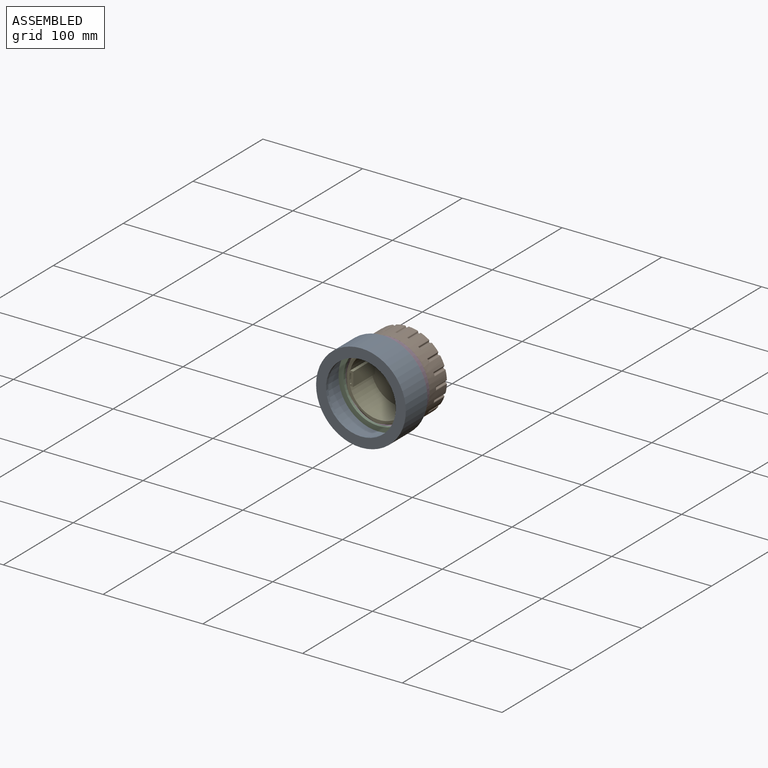
[diagram: assembled view]
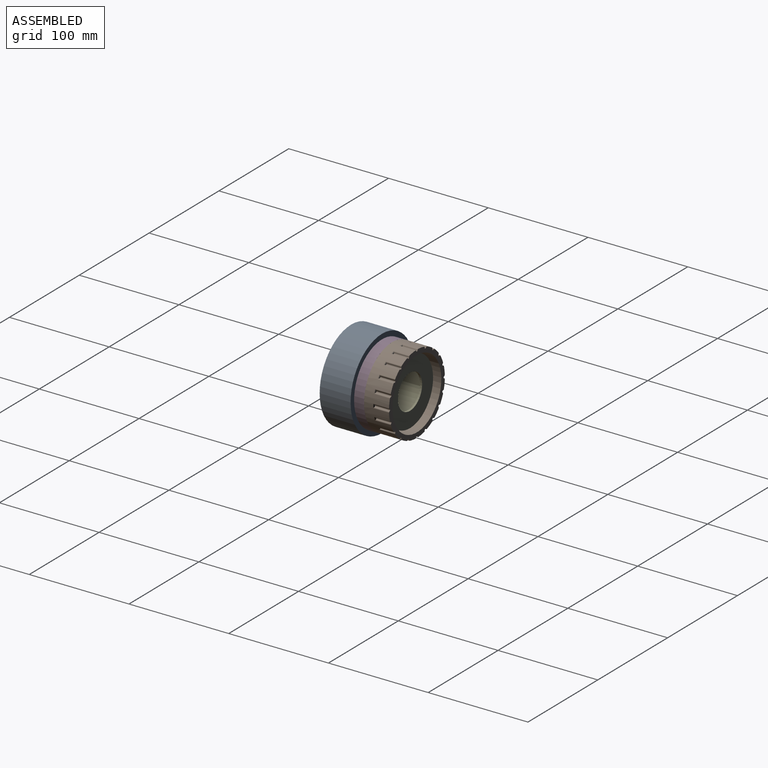
[diagram: assembled view, second angle]
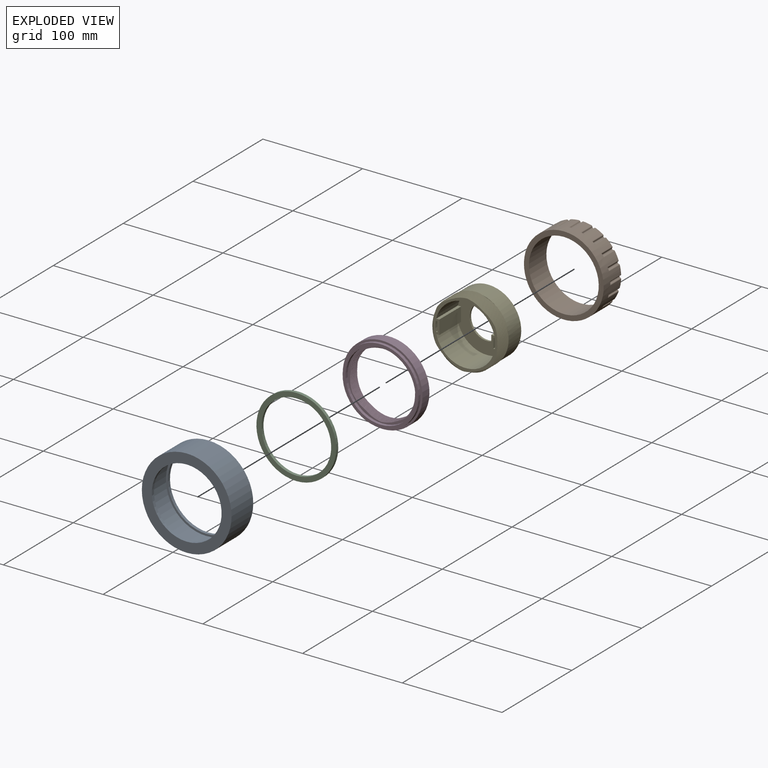
[diagram: exploded view]
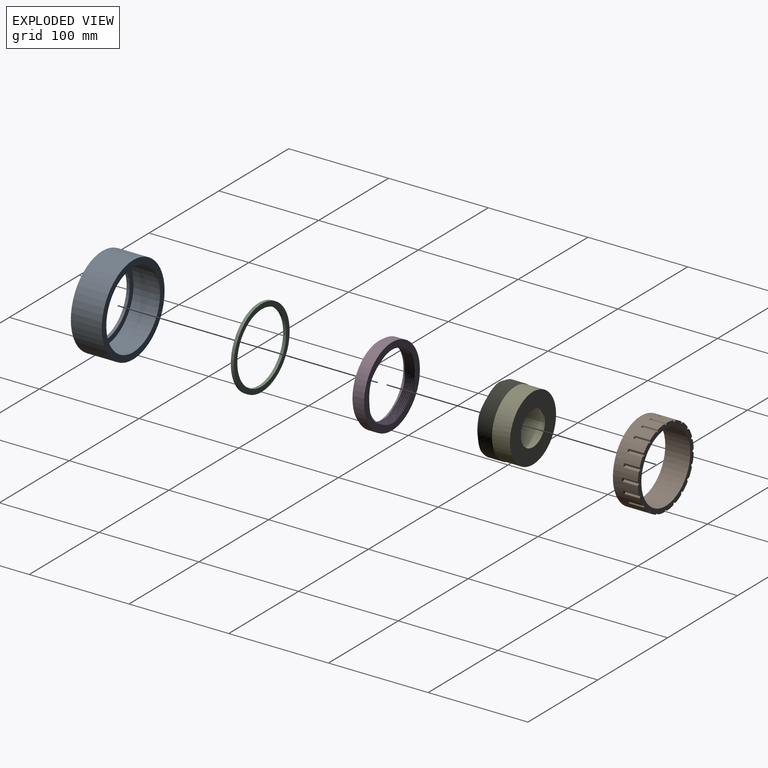
[diagram: exploded view, second angle]
ASSEMBLY  parts=5 mates=4
PART A: 8 faces, bbox 90x31x90 mm
  f0: plane 81x81mm, normal (0,-1,0), area 496.4mm2, adj f1,f4
  f1: cylinder r=38.5mm len=77mm, axis (0,1,0), area 725.7mm2, adj f0,f3
  f2: cylinder r=45mm len=90mm, axis (0,1,0), area 8765mm2, adj f3,f7
  f3: plane 90x90mm, normal (0,1,0), area 1705.1mm2, adj f1,f2
  f4: cylinder r=40.5mm len=81mm, axis (0,1,0), area 6361.7mm2, adj f0,f5
  f5: plane 81x81mm, normal (0,1,0), area 1304.5mm2, adj f4,f6
  f6: cylinder r=35mm len=70mm, axis (0,1,0), area 659.7mm2, adj f5,f7
  f7: plane 90x90mm, normal (0,-1,0), area 2513.3mm2, adj f2,f6
PART B: 144 faces, bbox 80.1x25x80.1 mm
  f0: cylinder r=1mm len=15mm, axis (0,1,0), area 33.7mm2, adj f4,f5,f6,f135
  f1: cylinder r=1mm len=16mm, axis (0,1,0), area 18.2mm2, adj f3,f4,f134,f135
  f2: cylinder r=1mm len=16mm, axis (0,1,0), area 18.2mm2, adj f3,f5,f134,f135
  f3: torus R=39mm, axis (0,-1,0), area 4.5mm2, adj f1,f2,f4,f5,f6,f134
  f4: plane 15.09x0.4mm, normal (-0.72,0,0.69), area 8.2mm2, adj f0,f1,f3,f6,f135
  f5: plane 15.09x0.55mm, normal (0.99,0,0.13), area 8.2mm2, adj f0,f2,f3,f6,f135
  f6: plane 1.81x0.98mm, normal (0,-1,0), area 0.9mm2, adj f0,f3,f4,f5
  f7: cylinder r=1mm len=15mm, axis (0,1,0), area 33.7mm2, adj f11,f12,f13,f135
  f8: cylinder r=1mm len=16mm, axis (0,1,0), area 18.2mm2, adj f10,f11,f134,f135
  f9: cylinder r=1mm len=16mm, axis (0,1,0), area 18.2mm2, adj f10,f12,f134,f135
  f10: torus R=39mm, axis (0,-1,0), area 4.5mm2, adj f8,f9,f11,f12,f13,f134
  f11: plane 15.09x0.48mm, normal (-0.48,0,0.88), area 8.2mm2, adj f7,f8,f10,f13,f135
  f12: plane 15.09x0.54mm, normal (0.98,0,-0.18), area 8.2mm2, adj f7,f9,f10,f13,f135
  f13: plane 1.58x1.29mm, normal (0,-1,0), area 0.9mm2, adj f7,f10,f11,f12
  f14: cylinder r=1mm len=15mm, axis (0,1,0), area 33.7mm2, adj f18,f19,f20,f135
  f15: cylinder r=1mm len=16mm, axis (0,1,0), area 18.2mm2, adj f17,f18,f134,f135
  f16: cylinder r=1mm len=16mm, axis (0,1,0), area 18.2mm2, adj f17,f19,f134,f135
  f17: torus R=39mm, axis (0,-1,0), area 4.5mm2, adj f15,f16,f18,f19,f20,f134
  f18: plane 15.09x0.54mm, normal (-0.18,0,0.98), area 8.2mm2, adj f14,f15,f17,f20,f135
  f19: plane 15.09x0.48mm, normal (0.88,0,-0.48), area 8.2mm2, adj f14,f16,f17,f20,f135
  f20: plane 1.58x1.29mm, normal (0,-1,0), area 0.9mm2, adj f14,f17,f18,f19
  f21: cylinder r=1mm len=15mm, axis (0,1,0), area 33.7mm2, adj f25,f26,f27,f135
  f22: cylinder r=1mm len=16mm, axis (0,1,0), area 18.2mm2, adj f24,f25,f134,f135
  f23: cylinder r=1mm len=16mm, axis (0,1,0), area 18.2mm2, adj f24,f26,f134,f135
  f24: torus R=39mm, axis (0,-1,0), area 4.5mm2, adj f22,f23,f25,f26,f27,f134
  f25: plane 15.09x0.55mm, normal (0.13,0,0.99), area 8.2mm2, adj f21,f22,f24,f27,f135
  f26: plane 15.09x0.4mm, normal (0.69,0,-0.72), area 8.2mm2, adj f21,f23,f24,f27,f135
  f27: plane 1.81x0.98mm, normal (0,-1,0), area 0.9mm2, adj f21,f24,f25,f26
  f28: cylinder r=1mm len=15mm, axis (0,1,0), area 33.7mm2, adj f32,f33,f34,f135
  f29: cylinder r=1mm len=16mm, axis (0,1,0), area 18.2mm2, adj f31,f32,f134,f135
  f30: cylinder r=1mm len=16mm, axis (0,1,0), area 18.2mm2, adj f31,f33,f134,f135
  f31: torus R=39mm, axis (0,-1,0), area 4.5mm2, adj f29,f30,f32,f33,f34,f134
  f32: plane 15.09x0.5mm, normal (0.43,0,0.9), area 8.2mm2, adj f28,f29,f31,f34,f135
  f33: plane 15.09x0.5mm, normal (0.43,0,-0.9), area 8.2mm2, adj f28,f30,f31,f34,f135
  f34: plane 1.9x0.68mm, normal (0,-1,0), area 0.9mm2, adj f28,f31,f32,f33
  f35: cylinder r=1mm len=15mm, axis (0,1,0), area 33.7mm2, adj f39,f40,f41,f135
  f36: cylinder r=1mm len=16mm, axis (0,1,0), area 18.2mm2, adj f38,f39,f134,f135
  f37: cylinder r=1mm len=16mm, axis (0,1,0), area 18.2mm2, adj f38,f40,f134,f135
  f38: torus R=39mm, axis (0,-1,0), area 4.5mm2, adj f36,f37,f39,f40,f41,f134
  f39: plane 15.09x0.4mm, normal (0.69,0,0.72), area 8.2mm2, adj f35,f36,f38,f41,f135
  f40: plane 15.09x0.55mm, normal (0.13,0,-0.99), area 8.2mm2, adj f35,f37,f38,f41,f135
  f41: plane 1.81x0.98mm, normal (0,-1,0), area 0.9mm2, adj f35,f38,f39,f40
  f42: cylinder r=1mm len=15mm, axis (0,1,0), area 33.7mm2, adj f46,f47,f48,f135
  f43: cylinder r=1mm len=16mm, axis (0,1,0), area 18.2mm2, adj f45,f46,f134,f135
  f44: cylinder r=1mm len=16mm, axis (0,1,0), area 18.2mm2, adj f45,f47,f134,f135
  f45: torus R=39mm, axis (0,-1,0), area 4.5mm2, adj f43,f44,f46,f47,f48,f134
  f46: plane 15.09x0.48mm, normal (0.88,0,0.48), area 8.2mm2, adj f42,f43,f45,f48,f135
  f47: plane 15.09x0.54mm, normal (-0.18,0,-0.98), area 8.2mm2, adj f42,f44,f45,f48,f135
  f48: plane 1.58x1.29mm, normal (0,-1,0), area 0.9mm2, adj f42,f45,f46,f47
  f49: cylinder r=1mm len=15mm, axis (0,1,0), area 33.7mm2, adj f53,f54,f55,f135
  f50: cylinder r=1mm len=16mm, axis (0,1,0), area 18.2mm2, adj f52,f53,f134,f135
  f51: cylinder r=1mm len=16mm, axis (0,1,0), area 18.2mm2, adj f52,f54,f134,f135
  f52: torus R=39mm, axis (0,-1,0), area 4.5mm2, adj f50,f51,f53,f54,f55,f134
  f53: plane 15.09x0.54mm, normal (0.98,0,0.18), area 8.2mm2, adj f49,f50,f52,f55,f135
  f54: plane 15.09x0.48mm, normal (-0.48,0,-0.88), area 8.2mm2, adj f49,f51,f52,f55,f135
  f55: plane 1.58x1.29mm, normal (0,-1,0), area 0.9mm2, adj f49,f52,f53,f54
  f56: cylinder r=1mm len=15mm, axis (0,1,0), area 33.7mm2, adj f60,f61,f62,f135
  f57: cylinder r=1mm len=16mm, axis (0,1,0), area 18.2mm2, adj f59,f60,f134,f135
  f58: cylinder r=1mm len=16mm, axis (0,1,0), area 18.2mm2, adj f59,f61,f134,f135
  f59: torus R=39mm, axis (0,-1,0), area 4.5mm2, adj f57,f58,f60,f61,f62,f134
  f60: plane 15.09x0.55mm, normal (0.99,0,-0.13), area 8.2mm2, adj f56,f57,f59,f62,f135
  f61: plane 15.09x0.4mm, normal (-0.72,0,-0.69), area 8.2mm2, adj f56,f58,f59,f62,f135
  f62: plane 1.81x0.98mm, normal (0,-1,0), area 0.9mm2, adj f56,f59,f60,f61
  f63: cylinder r=1mm len=15mm, axis (0,1,0), area 33.7mm2, adj f67,f68,f69,f135
  f64: cylinder r=1mm len=16mm, axis (0,1,0), area 18.2mm2, adj f66,f67,f134,f135
  f65: cylinder r=1mm len=16mm, axis (0,1,0), area 18.2mm2, adj f66,f68,f134,f135
  f66: torus R=39mm, axis (0,-1,0), area 4.5mm2, adj f64,f65,f67,f68,f69,f134
  f67: plane 15.09x0.5mm, normal (0.9,0,-0.43), area 8.2mm2, adj f63,f64,f66,f69,f135
  f68: plane 15.09x0.5mm, normal (-0.9,0,-0.43), area 8.2mm2, adj f63,f65,f66,f69,f135
  f69: plane 1.9x0.68mm, normal (0,-1,0), area 0.9mm2, adj f63,f66,f67,f68
  f70: cylinder r=1mm len=15mm, axis (0,1,0), area 33.7mm2, adj f74,f75,f76,f135
  f71: cylinder r=1mm len=16mm, axis (0,1,0), area 18.2mm2, adj f73,f74,f134,f135
  f72: cylinder r=1mm len=16mm, axis (0,1,0), area 18.2mm2, adj f73,f75,f134,f135
  f73: torus R=39mm, axis (0,-1,0), area 4.5mm2, adj f71,f72,f74,f75,f76,f134
  f74: plane 15.09x0.4mm, normal (0.72,0,-0.69), area 8.2mm2, adj f70,f71,f73,f76,f135
  f75: plane 15.09x0.55mm, normal (-0.99,0,-0.13), area 8.2mm2, adj f70,f72,f73,f76,f135
  f76: plane 1.81x0.98mm, normal (0,-1,0), area 0.9mm2, adj f70,f73,f74,f75
  f77: cylinder r=1mm len=15mm, axis (0,1,0), area 33.7mm2, adj f81,f82,f83,f135
  f78: cylinder r=1mm len=16mm, axis (0,1,0), area 18.2mm2, adj f80,f81,f134,f135
  f79: cylinder r=1mm len=16mm, axis (0,1,0), area 18.2mm2, adj f80,f82,f134,f135
  f80: torus R=39mm, axis (0,-1,0), area 4.5mm2, adj f78,f79,f81,f82,f83,f134
  f81: plane 15.09x0.48mm, normal (0.48,0,-0.88), area 8.2mm2, adj f77,f78,f80,f83,f135
  f82: plane 15.09x0.54mm, normal (-0.98,0,0.18), area 8.2mm2, adj f77,f79,f80,f83,f135
  f83: plane 1.58x1.29mm, normal (0,-1,0), area 0.9mm2, adj f77,f80,f81,f82
  f84: cylinder r=1mm len=15mm, axis (0,1,0), area 33.7mm2, adj f88,f89,f90,f135
  f85: cylinder r=1mm len=16mm, axis (0,1,0), area 18.2mm2, adj f87,f88,f134,f135
  f86: cylinder r=1mm len=16mm, axis (0,1,0), area 18.2mm2, adj f87,f89,f134,f135
  f87: torus R=39mm, axis (0,-1,0), area 4.5mm2, adj f85,f86,f88,f89,f90,f134
  f88: plane 15.09x0.54mm, normal (0.18,0,-0.98), area 8.2mm2, adj f84,f85,f87,f90,f135
  f89: plane 15.09x0.48mm, normal (-0.88,0,0.48), area 8.2mm2, adj f84,f86,f87,f90,f135
  f90: plane 1.58x1.29mm, normal (0,-1,0), area 0.9mm2, adj f84,f87,f88,f89
  f91: cylinder r=1mm len=15mm, axis (0,1,0), area 33.7mm2, adj f95,f96,f97,f135
  f92: cylinder r=1mm len=16mm, axis (0,1,0), area 18.2mm2, adj f94,f95,f134,f135
  f93: cylinder r=1mm len=16mm, axis (0,1,0), area 18.2mm2, adj f94,f96,f134,f135
  f94: torus R=39mm, axis (0,-1,0), area 4.5mm2, adj f92,f93,f95,f96,f97,f134
  f95: plane 15.09x0.55mm, normal (-0.13,0,-0.99), area 8.2mm2, adj f91,f92,f94,f97,f135
  f96: plane 15.09x0.4mm, normal (-0.69,0,0.72), area 8.2mm2, adj f91,f93,f94,f97,f135
  f97: plane 1.81x0.98mm, normal (0,-1,0), area 0.9mm2, adj f91,f94,f95,f96
  f98: cylinder r=1mm len=15mm, axis (0,1,0), area 33.7mm2, adj f102,f103,f104,f135
  f99: cylinder r=1mm len=16mm, axis (0,1,0), area 18.2mm2, adj f101,f102,f134,f135
  f100: cylinder r=1mm len=16mm, axis (0,1,0), area 18.2mm2, adj f101,f103,f134,f135
  f101: torus R=39mm, axis (0,-1,0), area 4.5mm2, adj f99,f100,f102,f103,f104,f134
  f102: plane 15.09x0.5mm, normal (-0.43,0,-0.9), area 8.2mm2, adj f98,f99,f101,f104,f135
  f103: plane 15.09x0.5mm, normal (-0.43,0,0.9), area 8.2mm2, adj f98,f100,f101,f104,f135
  f104: plane 1.9x0.68mm, normal (0,-1,0), area 0.9mm2, adj f98,f101,f102,f103
  f105: cylinder r=1mm len=15mm, axis (0,1,0), area 33.7mm2, adj f109,f110,f111,f135
  f106: cylinder r=1mm len=16mm, axis (0,1,0), area 18.2mm2, adj f108,f109,f134,f135
  f107: cylinder r=1mm len=16mm, axis (0,1,0), area 18.2mm2, adj f108,f110,f134,f135
  f108: torus R=39mm, axis (0,-1,0), area 4.5mm2, adj f106,f107,f109,f110,f111,f134
  f109: plane 15.09x0.4mm, normal (-0.69,0,-0.72), area 8.2mm2, adj f105,f106,f108,f111,f135
  f110: plane 15.09x0.55mm, normal (-0.13,0,0.99), area 8.2mm2, adj f105,f107,f108,f111,f135
  f111: plane 1.81x0.98mm, normal (0,-1,0), area 0.9mm2, adj f105,f108,f109,f110
  f112: cylinder r=1mm len=15mm, axis (0,1,0), area 33.7mm2, adj f116,f117,f118,f135
  f113: cylinder r=1mm len=16mm, axis (0,1,0), area 18.2mm2, adj f115,f116,f134,f135
  f114: cylinder r=1mm len=16mm, axis (0,1,0), area 18.2mm2, adj f115,f117,f134,f135
  f115: torus R=39mm, axis (0,-1,0), area 4.5mm2, adj f113,f114,f116,f117,f118,f134
  f116: plane 15.09x0.48mm, normal (-0.88,0,-0.48), area 8.2mm2, adj f112,f113,f115,f118,f135
  f117: plane 15.09x0.54mm, normal (0.18,0,0.98), area 8.2mm2, adj f112,f114,f115,f118,f135
  f118: plane 1.58x1.29mm, normal (0,-1,0), area 0.9mm2, adj f112,f115,f116,f117
  f119: cylinder r=1mm len=15mm, axis (0,1,0), area 33.7mm2, adj f123,f124,f125,f135
  f120: cylinder r=1mm len=16mm, axis (0,1,0), area 18.2mm2, adj f122,f123,f134,f135
  f121: cylinder r=1mm len=16mm, axis (0,1,0), area 18.2mm2, adj f122,f124,f134,f135
  f122: torus R=39mm, axis (0,-1,0), area 4.5mm2, adj f120,f121,f123,f124,f125,f134
  f123: plane 15.09x0.54mm, normal (-0.98,0,-0.18), area 8.2mm2, adj f119,f120,f122,f125,f135
  f124: plane 15.09x0.48mm, normal (0.48,0,0.88), area 8.2mm2, adj f119,f121,f122,f125,f135
  f125: plane 1.58x1.29mm, normal (0,-1,0), area 0.9mm2, adj f119,f122,f123,f124
  f126: cylinder r=1mm len=15mm, axis (0,1,0), area 33.7mm2, adj f130,f131,f132,f135
  f127: cylinder r=1mm len=16mm, axis (0,1,0), area 18.2mm2, adj f129,f130,f134,f135
  f128: cylinder r=1mm len=16mm, axis (0,1,0), area 18.2mm2, adj f129,f131,f134,f135
  f129: torus R=39mm, axis (0,-1,0), area 4.5mm2, adj f127,f128,f130,f131,f132,f134
  f130: plane 15.09x0.55mm, normal (-0.99,0,0.13), area 8.2mm2, adj f126,f127,f129,f132,f135
  f131: plane 15.09x0.4mm, normal (0.72,0,0.69), area 8.2mm2, adj f126,f128,f129,f132,f135
  f132: plane 1.81x0.98mm, normal (0,-1,0), area 0.9mm2, adj f126,f129,f130,f131
  f133: cylinder r=35mm len=70mm, axis (0,1,0), area 5497.8mm2, adj f135,f136
  f134: cylinder r=40mm len=80mm, axis (0,1,0), area 4943.6mm2, adj f1,f2,f3,f8,f9,f10,f15,f16
  f135: plane 79.89x79.89mm, normal (0,-1,0), area 1108.7mm2, adj f0,f1,f2,f4,f5,f7,f8,f9
  f136: plane 80x80mm, normal (0,1,0), area 1178.1mm2, adj f133,f134
  f137: plane 1.9x0.68mm, normal (0,-1,0), area 0.9mm2, adj f138,f139,f142,f143
  f138: plane 15.09x0.5mm, normal (0.9,0,0.43), area 8.2mm2, adj f135,f137,f141,f142,f143
  f139: plane 15.09x0.5mm, normal (-0.9,0,0.43), area 8.2mm2, adj f135,f137,f140,f142,f143
  f140: cylinder r=1mm len=16mm, axis (0,1,0), area 18.2mm2, adj f134,f135,f139,f142
  f141: cylinder r=1mm len=16mm, axis (0,1,0), area 18.2mm2, adj f134,f135,f138,f142
  f142: torus R=39mm, axis (0,-1,0), area 4.5mm2, adj f134,f137,f138,f139,f140,f141
  f143: cylinder r=1mm len=15mm, axis (0,1,0), area 33.7mm2, adj f135,f137,f138,f139
PART C: 4 faces, bbox 80x3x80 mm
  f0: cylinder r=35mm len=70mm, axis (0,1,0), area 659.7mm2, adj f2,f3
  f1: cylinder r=40mm len=80mm, axis (0,1,0), area 754mm2, adj f2,f3
  f2: plane 80x80mm, normal (0,-1,0), area 1178.1mm2, adj f0,f1
  f3: plane 80x80mm, normal (0,1,0), area 1178.1mm2, adj f0,f1
PART D: 25 faces, bbox 80.3x14.8x80.3 mm
  f0: plane 70.32x70.32mm, normal (0,-1,0), area 391.1mm2, adj f1,f2,f3,f4,f5,f6,f7,f8
  f1: cylinder r=32.5mm len=65mm, axis (0,1,0), area 32.8mm2, adj f0,f2,f18,f20
  f2: bspline ~72.97x72.97mm, area 350.6mm2, adj f0,f1,f3,f20
  f3: bspline ~72.97x72.97mm, area 350.6mm2, adj f0,f2,f4,f20
  f4: cylinder r=32.5mm len=65mm, axis (0,1,0), area 32.8mm2, adj f0,f3,f5,f20
  f5: bspline ~72.97x72.97mm, area 350.6mm2, adj f0,f4,f6,f20
  f6: bspline ~72.97x72.97mm, area 350.6mm2, adj f0,f5,f7,f20
  f7: cylinder r=32.5mm len=65mm, axis (0,1,0), area 32.8mm2, adj f0,f6,f8,f20
  f8: bspline ~68x68mm, area 350.6mm2, adj f0,f7,f9,f20
  f9: bspline ~68x68mm, area 350.6mm2, adj f0,f8,f10,f20
  f10: cylinder r=32.5mm len=65mm, axis (0,1,0), area 32.8mm2, adj f0,f9,f11,f20
  f11: bspline ~72.97x72.97mm, area 350.6mm2, adj f0,f10,f12,f20
  f12: bspline ~72.97x72.97mm, area 350.6mm2, adj f0,f11,f13,f20
  f13: cylinder r=32.5mm len=65mm, axis (0,1,0), area 32.8mm2, adj f0,f12,f14,f20
  f14: bspline ~72.97x72.97mm, area 350.6mm2, adj f0,f13,f15,f20
  f15: bspline ~72.97x72.97mm, area 350.6mm2, adj f0,f14,f16,f20
  f16: cylinder r=32.5mm len=65mm, axis (0,1,0), area 32.8mm2, adj f0,f15,f19,f20
  f17: cylinder r=40mm len=80mm, axis (0,1,0), area 2513.3mm2, adj f20,f21
  f18: bspline ~68x68mm, area 350.6mm2, adj f0,f1,f19,f20
  f19: bspline ~68x68mm, area 350.6mm2, adj f0,f16,f18,f20
  f20: plane 80.33x80.33mm, normal (0,1,0), area 1569.2mm2, adj f1,f2,f3,f4,f5,f6,f7,f8
  f21: plane 80x80mm, normal (0,-1,0), area 490.1mm2, adj f17,f23
  f22: cylinder r=35mm len=70mm, axis (0,1,0), area 659.7mm2, adj f0,f24
  f23: cylinder r=38mm len=76mm, axis (0,1,0), area 716.3mm2, adj f21,f24
  f24: plane 76x76mm, normal (0,-1,0), area 688mm2, adj f22,f23
PART E: 53 faces, bbox 72.2x35.1x72.2 mm
  f0: cylinder r=30mm len=58.34mm, axis (0,-1,0), area 2483.6mm2, adj f2,f29,f44,f47
  f1: cylinder r=30mm len=58.34mm, axis (0,-1,0), area 2483.6mm2, adj f2,f29,f41,f50
  f2: plane 60x58.34mm, normal (0,-1,0), area 1782.9mm2, adj f0,f1,f40,f41,f44,f46,f47,f50
  f3: cylinder r=30mm len=31mm, axis (0,-1,0), area 311.5mm2, adj f4,f29,f42,f43
  f4: plane 10x2mm, normal (0,-1,0), area 18.6mm2, adj f3,f42,f43,f45
  f5: plane 9.08x4.63mm, normal (0,1,0), area 2.6mm2, adj f14,f15,f36
  f6: plane 8.54x5.57mm, normal (0,1,0), area 2.6mm2, adj f16,f17,f36
  f7: plane 10.16x1.2mm, normal (0,1,0), area 2.6mm2, adj f18,f19,f36
  f8: plane 9.08x4.63mm, normal (0,1,0), area 2.6mm2, adj f20,f21,f36
  f9: plane 8.54x5.57mm, normal (0,1,0), area 2.6mm2, adj f10,f11,f36
  f10: bspline ~71.9x71.9mm, area 518.3mm2, adj f9,f11,f22,f29,f35
  f11: bspline ~71.9x71.9mm, area 518mm2, adj f9,f10,f23,f29,f38
  f12: bspline ~71.9x71.9mm, area 518.3mm2, adj f13,f23,f28,f29,f38
  f13: bspline ~71.9x71.9mm, area 518mm2, adj f12,f24,f28,f29,f31
  f14: bspline ~67x67mm, area 518.3mm2, adj f5,f15,f24,f29,f31
  f15: bspline ~67x67mm, area 518mm2, adj f5,f14,f25,f29,f32
  f16: bspline ~71.9x71.9mm, area 518.3mm2, adj f6,f17,f25,f29,f32
  f17: bspline ~71.9x71.9mm, area 518mm2, adj f6,f16,f26,f29,f33
  f18: bspline ~71.9x71.9mm, area 518.3mm2, adj f7,f19,f26,f29,f33
  f19: bspline ~71.9x71.9mm, area 518mm2, adj f7,f18,f27,f29,f34
  f20: bspline ~67x67mm, area 518mm2, adj f8,f21,f22,f29,f35
  f21: bspline ~67x67mm, area 518.3mm2, adj f8,f20,f27,f29,f34
  f22: cylinder r=32mm len=64mm, axis (0,1,0), area 50.2mm2, adj f10,f20,f29,f35
  f23: cylinder r=32mm len=64mm, axis (0,1,0), area 50.2mm2, adj f11,f12,f29,f38
  f24: cylinder r=32mm len=64mm, axis (0,1,0), area 50.2mm2, adj f13,f14,f29,f31
  f25: cylinder r=32mm len=64mm, axis (0,1,0), area 50.2mm2, adj f15,f16,f29,f32
  f26: cylinder r=32mm len=64mm, axis (0,1,0), area 50.2mm2, adj f17,f18,f29,f33
  f27: cylinder r=32mm len=64mm, axis (0,1,0), area 50.2mm2, adj f19,f21,f29,f34
  f28: plane 10.16x1.2mm, normal (0,1,0), area 2.6mm2, adj f12,f13,f36
  f29: plane 67.22x64.62mm, normal (0,-1,0), area 593.6mm2, adj f0,f1,f3,f10,f11,f12,f13,f14
  f30: cylinder r=30mm len=31mm, axis (0,-1,0), area 311.5mm2, adj f29,f39,f48,f49
  f31: plane 20.17x13.2mm, normal (0,-1,0), area 13.8mm2, adj f13,f14,f24,f36
  f32: plane 24x3.1mm, normal (0,-1,0), area 13.8mm2, adj f15,f16,f25,f36
  f33: plane 21.44x11mm, normal (0,-1,0), area 13.8mm2, adj f17,f18,f26,f36
  f34: plane 20.17x13.2mm, normal (0,-1,0), area 13.8mm2, adj f19,f21,f27,f36
  f35: plane 24x3.1mm, normal (0,-1,0), area 13.8mm2, adj f10,f20,f22,f36
  f36: cylinder r=33mm len=66mm, axis (0,-1,0), area 3732.2mm2, adj f5,f6,f7,f8,f9,f28,f31,f32
  f37: plane 66x66mm, normal (0,1,0), area 2480.9mm2, adj f36,f40
  f38: plane 21.44x11mm, normal (0,-1,0), area 13.8mm2, adj f11,f12,f23,f36
  f39: plane 10x2mm, normal (0,-1,0), area 18.6mm2, adj f30,f48,f49,f52
  f40: cylinder r=17.3mm len=34.6mm, axis (0,1,0), area 217.4mm2, adj f2,f37
  f41: plane 31x3.17mm, normal (0,0,1), area 98.3mm2, adj f1,f2,f29,f46
  f42: plane 31x1.58mm, normal (0,0,1), area 49mm2, adj f3,f4,f29,f45
  f43: plane 31x1.58mm, normal (0,0,-1), area 49mm2, adj f3,f4,f29,f45
  f44: plane 31x3.17mm, normal (0,0,-1), area 98.3mm2, adj f0,f2,f29,f46
  f45: plane 31x10mm, normal (-1,0,0), area 310mm2, adj f4,f29,f42,f43
  f46: plane 31x14mm, normal (1,0,0), area 434mm2, adj f2,f29,f41,f44
  f47: plane 31x3.17mm, normal (0,0,-1), area 98.3mm2, adj f0,f2,f29,f51
  f48: plane 31x1.58mm, normal (0,0,1), area 49mm2, adj f29,f30,f39,f52
  f49: plane 31x1.58mm, normal (0,0,-1), area 49mm2, adj f29,f30,f39,f52
  f50: plane 31x3.17mm, normal (0,0,1), area 98.3mm2, adj f1,f2,f29,f51
  f51: plane 31x14mm, normal (-1,0,0), area 434mm2, adj f2,f29,f47,f50
  f52: plane 31x10mm, normal (1,0,0), area 310mm2, adj f29,f39,f48,f49
PLACE A t=(12.52,-17.6,33.29)mm
PLACE B rot(axis=(-1,0,0),180deg) t=(12.52,-7.6,33.29)mm
PLACE C t=(12.52,-20.6,33.29)mm
PLACE D t=(12.52,-7.6,33.29)mm
PLACE E t=(12.52,-7.5,33.29)mm
MATE cylindrical E.f36 <-> D.f23  axis (0,-1,0) through (12.52,8.5,33.29)mm
MATE fastened D.f17 <-> B.f134  axis (0,1,0) through (12.52,-7.6,33.29)mm
MATE revolute D.f23 <-> A.f1  axis (0,-1,0) through (12.52,-20.6,33.29)mm
MATE fastened C.f1 <-> D.f22  axis (0,1,0) through (12.52,-20.6,33.29)mm
